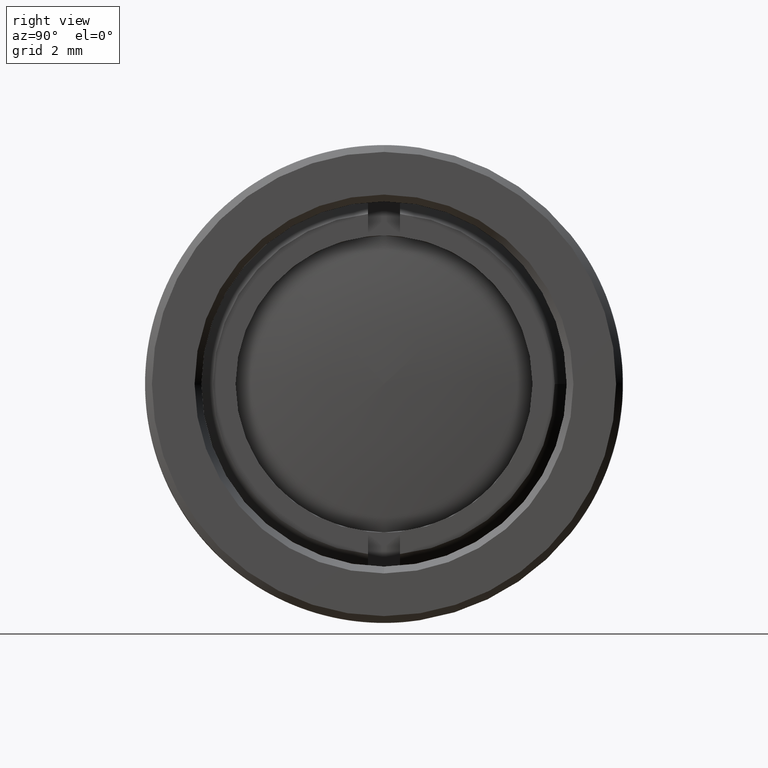
[diagram: clean part render]
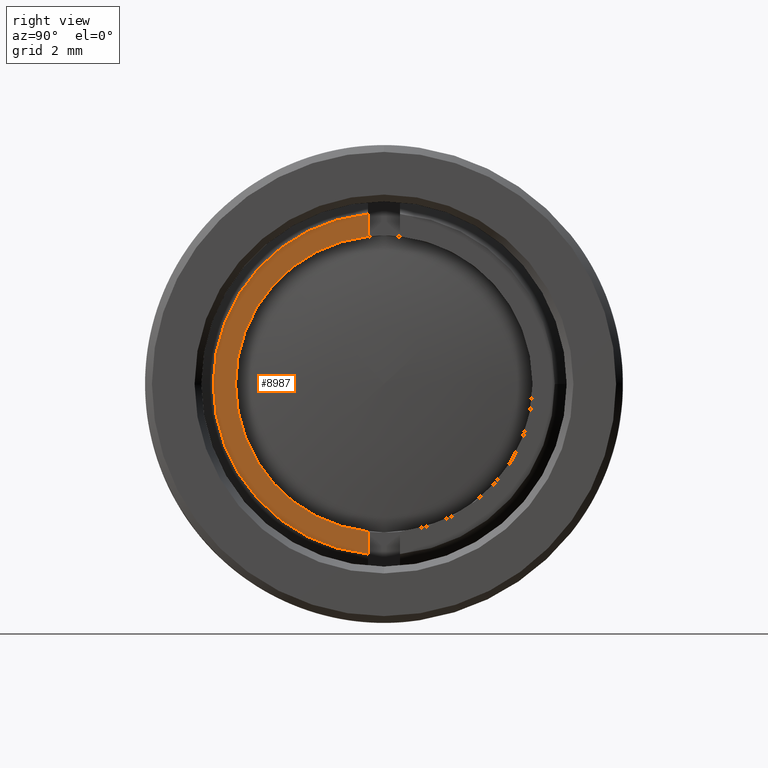
[diagram: same view with one face highlighted and labeled with its STEP entity id]
A machine part, right view. The second image highlights one B-rep face of the part: STEP entity #8987.
In plain terms, the highlighted planar face has unit normal (1, -0, -0).
Its self-contained STEP definition (entity closure, byte-faithful):
#159 = DIRECTION ( 'NONE',  ( 1.000000000000000000, -1.814574754612633700E-016, -1.860420394511413300E-017 ) ) ;
#1103 = DIRECTION ( 'NONE',  ( -1.364944011123595000E-016, -1.000000000000000000, -1.224646799147353000E-016 ) ) ;
#1139 = FACE_OUTER_BOUND ( 'NONE', #13101, .T. ) ;
#1218 = ORIENTED_EDGE ( 'NONE', *, *, #10430, .F. ) ;
#1693 = EDGE_CURVE ( 'NONE', #9285, #14027, #9916, .T. ) ;
#1822 = VECTOR ( 'NONE', #5269, 1000.000000000000000 ) ;
#1919 = ORIENTED_EDGE ( 'NONE', *, *, #11365, .F. ) ;
#2172 = DIRECTION ( 'NONE',  ( 1.000000000000000000, -1.814574754612633700E-016, -1.860420394511413300E-017 ) ) ;
#2599 = CARTESIAN_POINT ( 'NONE',  ( 6.347119933267196100, -0.5969000000000139700, -6.326462809524016100 ) ) ;
#2683 = VERTEX_POINT ( 'NONE', #9936 ) ;
#4427 = CARTESIAN_POINT ( 'NONE',  ( 6.347119933267196100, -1.478072027725997100E-014, 2.414547441679425900E-015 ) ) ;
#4923 = EDGE_CURVE ( 'NONE', #12635, #14027, #5552, .T. ) ;
#5269 = DIRECTION ( 'NONE',  ( -1.860420394511414200E-017, -4.746347881409169500E-017, -1.000000000000000000 ) ) ;
#5552 = LINE ( 'NONE', #11640, #13852 ) ;
#6110 = DIRECTION ( 'NONE',  ( 1.000000000000000000, -1.814574754612633700E-016, -1.860420394511413300E-017 ) ) ;
#6792 = CARTESIAN_POINT ( 'NONE',  ( 6.347119933267196100, -0.5969000000000126400, 5.492159014449603300 ) ) ;
#6932 = CARTESIAN_POINT ( 'NONE',  ( 6.347119933267196100, -1.478072027725997100E-014, 2.414547441679425900E-015 ) ) ;
#7816 = AXIS2_PLACEMENT_3D ( 'NONE', #6932, #159, #8079 ) ;
#7883 = DIRECTION ( 'NONE',  ( 1.000000000000000000, -1.814574754612633700E-016, -1.860420394511413300E-017 ) ) ;
#8079 = DIRECTION ( 'NONE',  ( -1.570027582565668500E-016, -1.000000000000000000, -1.224646799147353000E-016 ) ) ;
#8221 = DIRECTION ( 'NONE',  ( -1.860420394511408100E-017, 2.923928386435623900E-016, -1.000000000000000000 ) ) ;
#8967 = PLANE ( 'NONE',  #10132 ) ;
#8987 = ADVANCED_FACE ( 'NONE', ( #1139 ), #8967, .T. ) ;
#9285 = VERTEX_POINT ( 'NONE', #14440 ) ;
#9916 = CIRCLE ( 'NONE', #13213, 6.354559094877514800 ) ;
#9936 = CARTESIAN_POINT ( 'NONE',  ( 6.347119933267195300, -5.524500000000014800, 1.076792963658207300E-015 ) ) ;
#10099 = DIRECTION ( 'NONE',  ( -1.814574754612633700E-016, -1.000000000000000000, -1.224646799147353000E-016 ) ) ;
#10132 = AXIS2_PLACEMENT_3D ( 'NONE', #4427, #2172, #10099 ) ;
#10430 = EDGE_CURVE ( 'NONE', #2683, #12635, #11377, .T. ) ;
#11365 = EDGE_CURVE ( 'NONE', #13676, #2683, #13890, .T. ) ;
#11377 = CIRCLE ( 'NONE', #7816, 5.524499999999999700 ) ;
#11534 = AXIS2_PLACEMENT_3D ( 'NONE', #12881, #6110, #14012 ) ;
#11640 = CARTESIAN_POINT ( 'NONE',  ( 6.347119933267196100, -0.5969000000000137500, -6.768230244310546000 ) ) ;
#11996 = CARTESIAN_POINT ( 'NONE',  ( 6.347119933267196100, -0.5969000000000155300, 6.768230244310551300 ) ) ;
#12635 = VERTEX_POINT ( 'NONE', #13825 ) ;
#12881 = CARTESIAN_POINT ( 'NONE',  ( 6.347119933267196100, -1.478072027725997100E-014, 2.414547441679425900E-015 ) ) ;
#13101 = EDGE_LOOP ( 'NONE', ( #14679, #13692, #14521, #1218, #1919 ) ) ;
#13213 = AXIS2_PLACEMENT_3D ( 'NONE', #14641, #7883, #1103 ) ;
#13509 = LINE ( 'NONE', #11996, #1822 ) ;
#13676 = VERTEX_POINT ( 'NONE', #6792 ) ;
#13692 = ORIENTED_EDGE ( 'NONE', *, *, #1693, .T. ) ;
#13825 = CARTESIAN_POINT ( 'NONE',  ( 6.347119933267196100, -0.5969000000000138600, -5.492159014449598000 ) ) ;
#13852 = VECTOR ( 'NONE', #8221, 1000.000000000000000 ) ;
#13890 = CIRCLE ( 'NONE', #11534, 5.524499999999999700 ) ;
#13916 = EDGE_CURVE ( 'NONE', #9285, #13676, #13509, .T. ) ;
#14012 = DIRECTION ( 'NONE',  ( -1.570027582565668500E-016, -1.000000000000000000, -1.224646799147353000E-016 ) ) ;
#14027 = VERTEX_POINT ( 'NONE', #2599 ) ;
#14440 = CARTESIAN_POINT ( 'NONE',  ( 6.347119933267196100, -0.5969000000000155300, 6.326462809524021400 ) ) ;
#14521 = ORIENTED_EDGE ( 'NONE', *, *, #4923, .F. ) ;
#14641 = CARTESIAN_POINT ( 'NONE',  ( 6.347119933267196100, -1.478072027725997100E-014, 2.414547441679425900E-015 ) ) ;
#14679 = ORIENTED_EDGE ( 'NONE', *, *, #13916, .F. ) ;